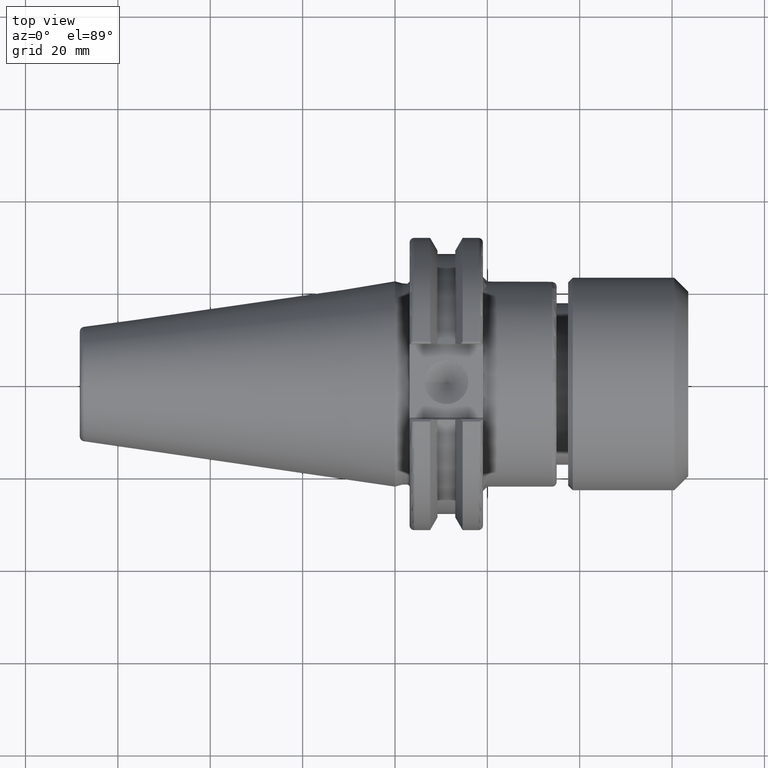
[diagram: clean part render]
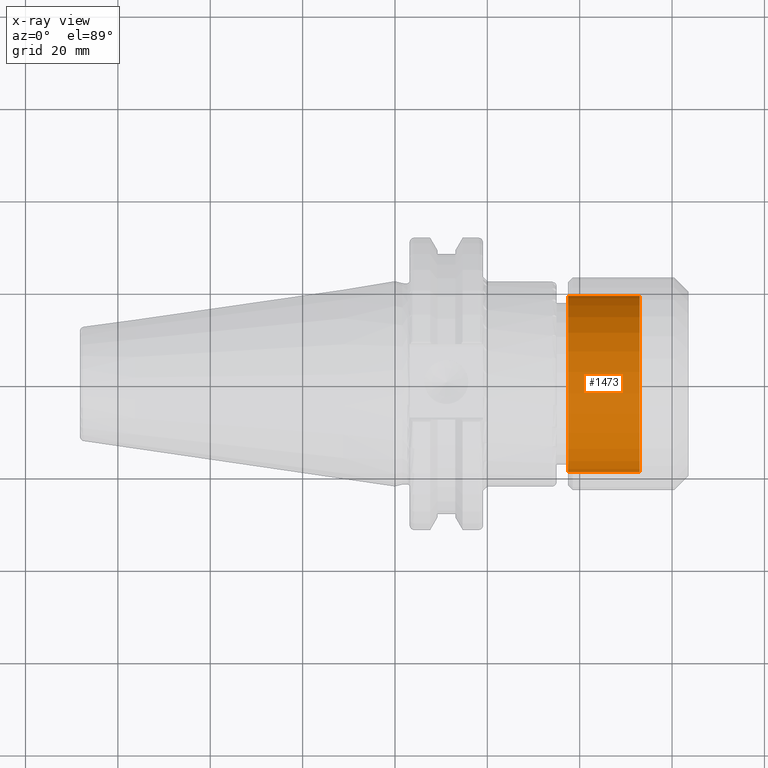
[diagram: x-ray — body ghosted, one internal face saturated and labeled with its STEP entity id]
A machine part, top view, then the same camera in x-ray: the body is ghosted and one INTERNAL B-rep face — a face not visible from any outside direction — is saturated and labeled: STEP entity #1473.
In plain terms, the highlighted cylindrical surface (bore or boss wall) has radius 19.05 mm, axis along (-1, 0, 0).
Its self-contained STEP definition (entity closure, byte-faithful):
#415=LINE('',#2807,#493);
#493=VECTOR('',#2120,19.05);
#513=CYLINDRICAL_SURFACE('',#1729,19.05);
#582=FACE_OUTER_BOUND('',#665,.T.);
#665=EDGE_LOOP('',(#1374,#1375,#1376,#1377));
#735=CIRCLE('',#1728,19.05);
#736=CIRCLE('',#1730,19.05);
#853=VERTEX_POINT('',#2803);
#854=VERTEX_POINT('',#2806);
#1028=EDGE_CURVE('',#853,#853,#735,.T.);
#1029=EDGE_CURVE('',#853,#854,#415,.T.);
#1030=EDGE_CURVE('',#854,#854,#736,.T.);
#1374=ORIENTED_EDGE('',*,*,#1028,.F.);
#1375=ORIENTED_EDGE('',*,*,#1029,.T.);
#1376=ORIENTED_EDGE('',*,*,#1030,.F.);
#1377=ORIENTED_EDGE('',*,*,#1029,.F.);
#1473=ADVANCED_FACE('',(#582),#513,.F.);
#1728=AXIS2_PLACEMENT_3D('',#2804,#2116,#2117);
#1729=AXIS2_PLACEMENT_3D('',#2805,#2118,#2119);
#1730=AXIS2_PLACEMENT_3D('',#2808,#2121,#2122);
#2116=DIRECTION('center_axis',(-1.,0.,0.));
#2117=DIRECTION('ref_axis',(0.,0.,1.));
#2118=DIRECTION('center_axis',(-1.,0.,0.));
#2119=DIRECTION('ref_axis',(0.,1.,0.));
#2120=DIRECTION('',(-1.,0.,0.));
#2121=DIRECTION('center_axis',(1.,0.,0.));
#2122=DIRECTION('ref_axis',(0.,1.,0.));
#2803=CARTESIAN_POINT('',(15.5,-19.05,2.33295215237571E-15));
#2804=CARTESIAN_POINT('Origin',(15.5,0.,0.));
#2805=CARTESIAN_POINT('Origin',(7.75,0.,0.));
#2806=CARTESIAN_POINT('',(0.,-19.05,2.33295215237571E-15));
#2807=CARTESIAN_POINT('',(7.75,-19.05,2.33295215237571E-15));
#2808=CARTESIAN_POINT('Origin',(0.,0.,0.));